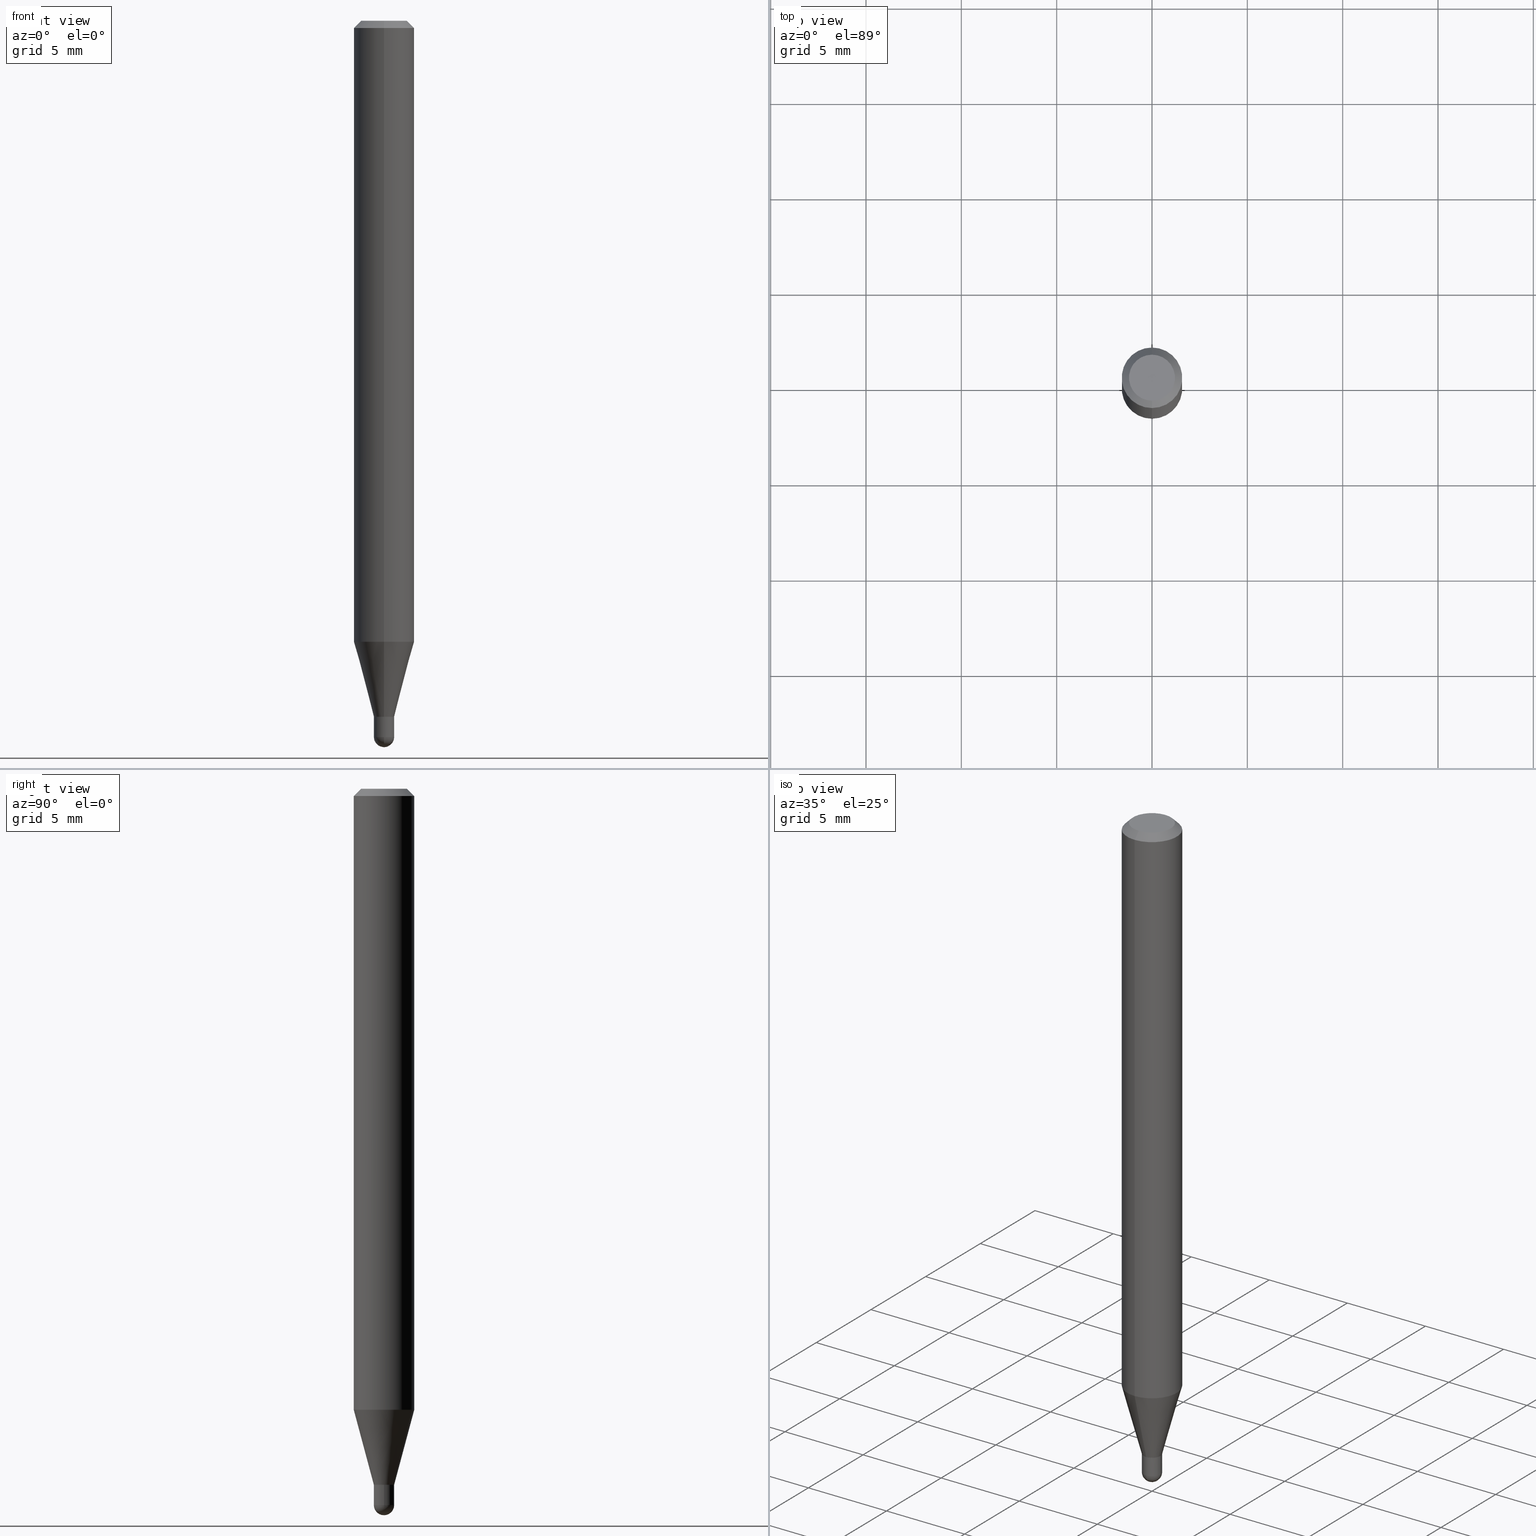
[diagram: canonical four-view strip — front | top / right | iso, engineering-drawing reading convention]
A machine part, canonical four-view strip (front | top / right | iso — engineering-drawing reading convention). The complete STEP part file that produces these views, byte-faithful:
ISO-10303-21;
HEADER;
FILE_DESCRIPTION (( 'STEP AP203' ),
    '1' );
FILE_NAME ('01399.STEP',
    '2024-03-07T20:22:15',
    ( '' ),
    ( '' ),
    'SwSTEP 2.0',
    'SolidWorks 2023',
    '' );
FILE_SCHEMA (( 'CONFIG_CONTROL_DESIGN' ));
ENDSEC;

DATA;
#1 = CARTESIAN_POINT ( 'NONE',  ( 0.000000000000000000, 0.000000000000000000, 0.000000000000000000 ) ) ;
#2 = DIRECTION ( 'NONE',  ( -2.445457810886639076E-29, 3.491497084736407816E-15, 1.000000000000000000 ) ) ;
#3 = EDGE_LOOP ( 'NONE', ( #261, #9, #63, #347 ) ) ;
#4 = EDGE_CURVE ( 'NONE', #162, #239, #339, .T. ) ;
#5 = ORIENTED_EDGE ( 'NONE', *, *, #6, .F. ) ;
#6 = EDGE_CURVE ( 'NONE', #276, #180, #224, .T. ) ;
#7 = CIRCLE ( 'NONE', #184, 0.02099999999999992498 ) ;
#8 = PRODUCT_DEFINITION_FORMATION_WITH_SPECIFIED_SOURCE ( 'ANY', '', #95, .NOT_KNOWN. ) ;
#9 = ORIENTED_EDGE ( 'NONE', *, *, #472, .T. ) ;
#10 = DIRECTION ( 'NONE',  ( -2.445457810886639076E-29, 3.491497084736407816E-15, 1.000000000000000000 ) ) ;
#11 = CARTESIAN_POINT ( 'NONE',  ( 3.514122874244100185E-29, -5.017281310766218932E-15, -1.437000000000000055 ) ) ;
#12 = CLOSED_SHELL ( 'NONE', ( #131, #349, #259, #50, #329, #392, #141, #38, #476, #412, #409, #267 ) ) ;
#13 = CONICAL_SURFACE ( 'NONE', #299, 0.02099999999999992498, 0.2617993877991575125 ) ;
#14 = DIRECTION ( 'NONE',  ( -2.445457810886639076E-29, 3.491497084736408211E-15, 1.000000000000000000 ) ) ;
#15 = EDGE_CURVE ( 'NONE', #20, #19, #107, .T. ) ;
#16 = DIRECTION ( 'NONE',  ( -6.982962677686266711E-15, -1.000000000000000000, 0.000000000000000000 ) ) ;
#17 = CIRCLE ( 'NONE', #453, 0.04749999999999999362 ) ;
#18 = DIRECTION ( 'NONE',  ( -6.982962677686266711E-15, -1.000000000000000000, 3.491497084736407816E-15 ) ) ;
#19 = VERTEX_POINT ( 'NONE', #352 ) ;
#20 = VERTEX_POINT ( 'NONE', #72 ) ;
#21 = PLANE ( 'NONE',  #396 ) ;
#22 = ORIENTED_EDGE ( 'NONE', *, *, #103, .F. ) ;
#23 = VECTOR ( 'NONE', #402, 39.37007874015748854 ) ;
#24 = CARTESIAN_POINT ( 'NONE',  ( 1.466422162314467535E-16, 0.02099999999999498795, -1.437000000000000055 ) ) ;
#25 = CARTESIAN_POINT ( 'NONE',  ( 3.514122874244100185E-29, -5.017281310766218932E-15, -1.437000000000000055 ) ) ;
#26 = DIRECTION ( 'NONE',  ( 6.982962677686265922E-15, 1.000000000000000000, -3.491497084736408211E-15 ) ) ;
#27 = CARTESIAN_POINT ( 'NONE',  ( 3.668186716329960943E-31, -5.237245627104615200E-17, -0.01500000000000000812 ) ) ;
#28 = ORIENTED_EDGE ( 'NONE', *, *, #48, .F. ) ;
#29 = APPROVAL_STATUS ( 'not_yet_approved' ) ;
#30 = CC_DESIGN_DATE_AND_TIME_ASSIGNMENT ( #315, #154, ( #153 ) ) ;
#31 = CARTESIAN_POINT ( 'NONE',  ( 0.02100000000000000477, -1.466422162314116246E-16, 1.023997122917146650E-30 ) ) ;
#32 = VECTOR ( 'NONE', #136, 39.37007874015748854 ) ;
#33 = CC_DESIGN_SECURITY_CLASSIFICATION ( #153, ( #8 ) ) ;
#34 = DIRECTION ( 'NONE',  ( -2.445468806185136877E-29, 3.491481338843145188E-15, 1.000000000000000000 ) ) ;
#35 = ORIENTED_EDGE ( 'NONE', *, *, #181, .F. ) ;
#36 = PERSON_AND_ORGANIZATION ( #355, #308 ) ;
#37 = CARTESIAN_POINT ( 'NONE',  ( 3.616848364347817323E-29, -5.163900900149012660E-15, -1.479000000000000092 ) ) ;
#38 = ADVANCED_FACE ( 'NONE', ( #76 ), #78, .T. ) ;
#39 = ORIENTED_EDGE ( 'NONE', *, *, #181, .T. ) ;
#40 = CALENDAR_DATE ( 2024, 7, 3 ) ;
#41 = DIRECTION ( 'NONE',  ( -4.937700262164674260E-15, -0.7071067811865632269, 0.7071067811865319186 ) ) ;
#42 = CARTESIAN_POINT ( 'NONE',  ( 3.514122874244100185E-29, -5.017281310766218932E-15, -1.437000000000000055 ) ) ;
#43 = AXIS2_PLACEMENT_3D ( 'NONE', #151, #269, #307 ) ;
#44 = LOCAL_TIME ( 15, 22, 15.00000000000000000, #223 ) ;
#45 = CIRCLE ( 'NONE', #237, 0.02100000000000000477 ) ;
#46 = DIRECTION ( 'NONE',  ( -6.982962677686266711E-15, -1.000000000000000000, 0.000000000000000000 ) ) ;
#47 = CALENDAR_DATE ( 2024, 7, 3 ) ;
#48 = EDGE_CURVE ( 'NONE', #150, #162, #91, .T. ) ;
#49 = FACE_OUTER_BOUND ( 'NONE', #92, .T. ) ;
#50 = ADVANCED_FACE ( 'NONE', ( #189 ), #114, .T. ) ;
#51 = CARTESIAN_POINT ( 'NONE',  ( 1.492139745096204813E-16, 0.02099999999999992498, -7.332143877946431328E-17 ) ) ;
#52 = CC_DESIGN_PERSON_AND_ORGANIZATION_ASSIGNMENT ( #36, #481, ( #153 ) ) ;
#53 = FACE_OUTER_BOUND ( 'NONE', #232, .T. ) ;
#54 = DIRECTION ( 'NONE',  ( -2.445457810886639076E-29, 3.491497084736407816E-15, 1.000000000000000000 ) ) ;
#55 = CIRCLE ( 'NONE', #138, 0.06250000000000000000 ) ;
#56 = VECTOR ( 'NONE', #373, 39.37007874015748143 ) ;
#57 = EDGE_CURVE ( 'NONE', #257, #246, #331, .T. ) ;
#58 = FACE_OUTER_BOUND ( 'NONE', #423, .T. ) ;
#59 = APPROVAL ( #164, 'UNSPECIFIED' ) ;
#60 = DIRECTION ( 'NONE',  ( -2.445457810886639076E-29, 3.491497084736407816E-15, 1.000000000000000000 ) ) ;
#61 = DIRECTION ( 'NONE',  ( 5.024295867788190974E-15, 0.7071067811865681119, 0.7071067811865270336 ) ) ;
#62 =( GEOMETRIC_REPRESENTATION_CONTEXT ( 3 ) GLOBAL_UNCERTAINTY_ASSIGNED_CONTEXT ( ( #434 ) ) GLOBAL_UNIT_ASSIGNED_CONTEXT ( ( #379, #71, #179 ) ) REPRESENTATION_CONTEXT ( 'NONE', 'WORKASPACE' ) );
#63 = ORIENTED_EDGE ( 'NONE', *, *, #233, .F. ) ;
#64 = DIRECTION ( 'NONE',  ( -1.000000000000000000, 6.982962677686265922E-15, -4.876176775795935793E-29 ) ) ;
#65 = ORIENTED_EDGE ( 'NONE', *, *, #4, .T. ) ;
#66 = CARTESIAN_POINT ( 'NONE',  ( 4.440892098500625669E-16, 0.06250000000000000000, -2.182185677960254885E-16 ) ) ;
#67 = ORIENTED_EDGE ( 'NONE', *, *, #97, .T. ) ;
#68 = PERSON_AND_ORGANIZATION ( #355, #308 ) ;
#69 = ORIENTED_EDGE ( 'NONE', *, *, #88, .T. ) ;
#70 = DIRECTION ( 'NONE',  ( 1.000000000000000000, -6.982962677686284065E-15, 0.000000000000000000 ) ) ;
#71 =( NAMED_UNIT ( * ) PLANE_ANGLE_UNIT ( ) SI_UNIT ( $, .RADIAN. ) );
#72 = CARTESIAN_POINT ( 'NONE',  ( 3.840629472727447874E-16, 0.04749999999999999362, -1.747056831868805136E-16 ) ) ;
#73 = EDGE_LOOP ( 'NONE', ( #157, #461, #389, #507, #140 ) ) ;
#74 = CC_DESIGN_PERSON_AND_ORGANIZATION_ASSIGNMENT ( #268, #145, ( #95 ) ) ;
#75 = DIRECTION ( 'NONE',  ( -2.445468806185136597E-29, 3.491481338843145583E-15, 1.000000000000000000 ) ) ;
#76 = FACE_OUTER_BOUND ( 'NONE', #345, .T. ) ;
#77 = VERTEX_POINT ( 'NONE', #375 ) ;
#78 = CONICAL_SURFACE ( 'NONE', #225, 0.06250000000000000000, 0.7853981633974483900 ) ;
#79 = AXIS2_PLACEMENT_3D ( 'NONE', #262, #301, #26 ) ;
#80 = EDGE_CURVE ( 'NONE', #370, #512, #7, .T. ) ;
#81 = DIRECTION ( 'NONE',  ( -6.982962677686266711E-15, -1.000000000000000000, 3.491497084736408211E-15 ) ) ;
#82 = ORIENTED_EDGE ( 'NONE', *, *, #289, .F. ) ;
#83 = SHAPE_DEFINITION_REPRESENTATION ( #137, #489 ) ;
#84 = PERSON_AND_ORGANIZATION ( #355, #308 ) ;
#85 = CARTESIAN_POINT ( 'NONE',  ( 3.512900145338657189E-29, -5.015535562223849632E-15, -1.436500000000000110 ) ) ;
#86 = PERSON_AND_ORGANIZATION_ROLE ( 'creator' ) ;
#87 = LOCAL_TIME ( 15, 22, 15.00000000000000000, #282 ) ;
#88 = EDGE_CURVE ( 'NONE', #297, #150, #251, .T. ) ;
#89 = DIRECTION ( 'NONE',  ( -2.445457810886639076E-29, 3.491497084736408211E-15, 1.000000000000000000 ) ) ;
#90 = ADVANCED_FACE ( 'NONE', ( #467 ), #265, .T. ) ;
#91 = CIRCLE ( 'NONE', #163, 0.02100000000000000824 ) ;
#92 = EDGE_LOOP ( 'NONE', ( #219, #457, #464, #471 ) ) ;
#93 = DIRECTION ( 'NONE',  ( -6.982962677686266711E-15, -1.000000000000000000, 0.000000000000000000 ) ) ;
#94 = EDGE_LOOP ( 'NONE', ( #273, #270, #111, #508 ) ) ;
#95 = PRODUCT ( '01399', '01399', '', ( #499 ) ) ;
#96 = DIRECTION ( 'NONE',  ( -6.982962677686265922E-15, -1.000000000000000000, 3.491497084736408211E-15 ) ) ;
#97 = EDGE_CURVE ( 'NONE', #276, #150, #490, .T. ) ;
#98 = DIRECTION ( 'NONE',  ( 2.438088387897960049E-29, -3.491481338843145188E-15, -1.000000000000000000 ) ) ;
#99 = ORIENTED_EDGE ( 'NONE', *, *, #414, .F. ) ;
#100 = AXIS2_PLACEMENT_3D ( 'NONE', #280, #2, #388 ) ;
#101 = AXIS2_PLACEMENT_3D ( 'NONE', #42, #318, #313 ) ;
#102 = ORIENTED_EDGE ( 'NONE', *, *, #156, .T. ) ;
#103 = EDGE_CURVE ( 'NONE', #158, #77, #55, .T. ) ;
#104 = CARTESIAN_POINT ( 'NONE',  ( 3.512900145338657189E-29, -5.015535562223849632E-15, -1.436500000000000110 ) ) ;
#105 = DIRECTION ( 'NONE',  ( -2.445468806185136597E-29, 3.491481338843145583E-15, 1.000000000000000000 ) ) ;
#106 = CARTESIAN_POINT ( 'NONE',  ( -1.466422162313759286E-16, -0.02100000000000494180, -1.437000000000000055 ) ) ;
#107 = LINE ( 'NONE', #377, #235 ) ;
#108 = CARTESIAN_POINT ( 'NONE',  ( 0.000000000000000000, 0.000000000000000000, 0.000000000000000000 ) ) ;
#109 = VERTEX_POINT ( 'NONE', #195 ) ;
#110 = DIRECTION ( 'NONE',  ( -2.445457810886639076E-29, 3.491497084736407816E-15, 1.000000000000000000 ) ) ;
#111 = ORIENTED_EDGE ( 'NONE', *, *, #368, .T. ) ;
#112 = AXIS2_PLACEMENT_3D ( 'NONE', #207, #358, #323 ) ;
#113 = LOCAL_TIME ( 15, 22, 15.00000000000000000, #473 ) ;
#114 = CYLINDRICAL_SURFACE ( 'NONE', #43, 0.06250000000000000000 ) ;
#115 = ORIENTED_EDGE ( 'NONE', *, *, #431, .T. ) ;
#116 = DIRECTION ( 'NONE',  ( 1.000000000000000000, -6.982962677686265922E-15, 4.876176775795935232E-29 ) ) ;
#117 = ORIENTED_EDGE ( 'NONE', *, *, #15, .T. ) ;
#118 = PERSON_AND_ORGANIZATION ( #355, #308 ) ;
#119 = DIRECTION ( 'NONE',  ( -2.445468806185136597E-29, 3.491481338843145583E-15, 1.000000000000000000 ) ) ;
#120 = ORIENTED_EDGE ( 'NONE', *, *, #289, .T. ) ;
#121 = VECTOR ( 'NONE', #430, 39.37007874015748143 ) ;
#122 = PERSON_AND_ORGANIZATION_ROLE ( 'creator' ) ;
#123 = AXIS2_PLACEMENT_3D ( 'NONE', #104, #110, #182 ) ;
#124 = DIRECTION ( 'NONE',  ( -2.445468806185136597E-29, 3.491481338843145583E-15, 1.000000000000000000 ) ) ;
#125 = CARTESIAN_POINT ( 'NONE',  ( -4.364351673553912750E-16, -0.06250000000000005551, -0.01499999999999979128 ) ) ;
#126 = COORDINATED_UNIVERSAL_TIME_OFFSET ( 5, 0, .BEHIND. ) ;
#127 = CARTESIAN_POINT ( 'NONE',  ( 0.02100000000000000477, -5.163900900149012660E-15, -1.437000000000000055 ) ) ;
#128 = LINE ( 'NONE', #371, #32 ) ;
#129 = CARTESIAN_POINT ( 'NONE',  ( -1.431507348925333159E-16, -0.02050000000000501768, -1.437000000000000055 ) ) ;
#130 = DIRECTION ( 'NONE',  ( -6.982962677686266711E-15, -1.000000000000000000, 3.491497084736408211E-15 ) ) ;
#131 = ADVANCED_FACE ( 'NONE', ( #344 ), #511, .F. ) ;
#132 = AXIS2_PLACEMENT_3D ( 'NONE', #205, #167, #175 ) ;
#133 = AXIS2_PLACEMENT_3D ( 'NONE', #204, #10, #399 ) ;
#134 = CARTESIAN_POINT ( 'NONE',  ( 3.615052515140540551E-29, -5.166472658427222799E-15, -1.479000000000000092 ) ) ;
#135 = CARTESIAN_POINT ( 'NONE',  ( -4.287811248607203282E-16, -0.06250000000000005551, -0.01499999999999979128 ) ) ;
#136 = DIRECTION ( 'NONE',  ( 1.839019923739649619E-15, 0.2588190451025318972, 0.9659258262890650926 ) ) ;
#137 = PRODUCT_DEFINITION_SHAPE ( 'NONE', 'NONE',  #306 ) ;
#138 = AXIS2_PLACEMENT_3D ( 'NONE', #424, #275, #384 ) ;
#139 = CIRCLE ( 'NONE', #252, 0.02100000000000000824 ) ;
#140 = ORIENTED_EDGE ( 'NONE', *, *, #454, .F. ) ;
#141 = ADVANCED_FACE ( 'NONE', ( #312 ), #155, .T. ) ;
#142 = DIRECTION ( 'NONE',  ( -6.982962677686266711E-15, -1.000000000000000000, 0.000000000000000000 ) ) ;
#143 = EDGE_CURVE ( 'NONE', #109, #314, #210, .T. ) ;
#144 = CLOSED_SHELL ( 'NONE', ( #359, #458, #492, #397, #90 ) ) ;
#145 = PERSON_AND_ORGANIZATION_ROLE ( 'design_owner' ) ;
#146 = DIRECTION ( 'NONE',  ( -2.445457810886639076E-29, 3.491497084736407816E-15, 1.000000000000000000 ) ) ;
#147 = ORIENTED_EDGE ( 'NONE', *, *, #444, .F. ) ;
#148 = CC_DESIGN_DATE_AND_TIME_ASSIGNMENT ( #426, #166, ( #306 ) ) ;
#149 = DIRECTION ( 'NONE',  ( -6.982962677686266711E-15, -1.000000000000000000, 0.000000000000000000 ) ) ;
#150 = VERTEX_POINT ( 'NONE', #249 ) ;
#151 = CARTESIAN_POINT ( 'NONE',  ( 0.000000000000000000, 0.000000000000000000, 0.000000000000000000 ) ) ;
#152 = ORIENTED_EDGE ( 'NONE', *, *, #324, .T. ) ;
#153 = SECURITY_CLASSIFICATION ( '', '', #319 ) ;
#154 = DATE_TIME_ROLE ( 'classification_date' ) ;
#155 = CYLINDRICAL_SURFACE ( 'NONE', #364, 0.06250000000000000000 ) ;
#156 = EDGE_CURVE ( 'NONE', #19, #314, #417, .T. ) ;
#157 = ORIENTED_EDGE ( 'NONE', *, *, #4, .F. ) ;
#158 = VERTEX_POINT ( 'NONE', #439 ) ;
#159 = FACE_OUTER_BOUND ( 'NONE', #448, .T. ) ;
#160 = ORIENTED_EDGE ( 'NONE', *, *, #361, .T. ) ;
#161 = MANIFOLD_SOLID_BREP ( 'Body-Move/Copy2[2]', #12 ) ;
#162 = VERTEX_POINT ( 'NONE', #391 ) ;
#163 = AXIS2_PLACEMENT_3D ( 'NONE', #37, #234, #260 ) ;
#164 = APPROVAL_STATUS ( 'not_yet_approved' ) ;
#165 = DIRECTION ( 'NONE',  ( -6.982962677686266711E-15, -1.000000000000000000, 0.000000000000000000 ) ) ;
#166 = DATE_TIME_ROLE ( 'creation_date' ) ;
#167 = DIRECTION ( 'NONE',  ( 2.445457810886639076E-29, -3.491497084736407816E-15, -1.000000000000000000 ) ) ;
#168 = CARTESIAN_POINT ( 'NONE',  ( 3.668186716329960943E-31, -5.237245627104615200E-17, -0.01500000000000000812 ) ) ;
#169 = AXIS2_PLACEMENT_3D ( 'NONE', #231, #119, #380 ) ;
#170 = LOCAL_TIME ( 15, 22, 15.00000000000000000, #126 ) ;
#171 = CARTESIAN_POINT ( 'NONE',  ( 3.514122874244100185E-29, -5.017281310766218932E-15, -1.437000000000000055 ) ) ;
#172 = APPLICATION_CONTEXT ( 'configuration controlled 3d designs of mechanical parts and assemblies' ) ;
#173 = CARTESIAN_POINT ( 'NONE',  ( 3.615052515140540551E-29, -5.166472658427222799E-15, -1.479000000000000092 ) ) ;
#174 = DIRECTION ( 'NONE',  ( -6.982962677686266711E-15, -1.000000000000000000, 0.000000000000000000 ) ) ;
#175 = DIRECTION ( 'NONE',  ( 6.982962677686265922E-15, 1.000000000000000000, -3.483106191921935554E-15 ) ) ;
#176 = DIRECTION ( 'NONE',  ( -2.445457810886639076E-29, 3.491497084736408211E-15, 1.000000000000000000 ) ) ;
#177 = AXIS2_PLACEMENT_3D ( 'NONE', #192, #474, #305 ) ;
#178 = EDGE_CURVE ( 'NONE', #246, #367, #400, .T. ) ;
#179 =( NAMED_UNIT ( * ) SI_UNIT ( $, .STERADIAN. ) SOLID_ANGLE_UNIT ( ) );
#180 = VERTEX_POINT ( 'NONE', #127 ) ;
#181 = EDGE_CURVE ( 'NONE', #236, #367, #285, .T. ) ;
#182 = DIRECTION ( 'NONE',  ( -6.982962677686266711E-15, -1.000000000000000000, 0.000000000000000000 ) ) ;
#183 = VERTEX_POINT ( 'NONE', #393 ) ;
#184 = AXIS2_PLACEMENT_3D ( 'NONE', #25, #504, #149 ) ;
#185 = AXIS2_PLACEMENT_3D ( 'NONE', #363, #60, #357 ) ;
#186 =( LENGTH_UNIT ( ) NAMED_UNIT ( * ) SI_UNIT ( $, .METRE. ) );
#187 = DIRECTION ( 'NONE',  ( -6.982962677686266711E-15, -1.000000000000000000, 0.000000000000000000 ) ) ;
#188 = LENGTH_MEASURE_WITH_UNIT ( LENGTH_MEASURE( 0.02539999999999999897 ), #186 );
#189 = FACE_OUTER_BOUND ( 'NONE', #3, .T. ) ;
#190 = EDGE_LOOP ( 'NONE', ( #469, #69, #479, #487 ) ) ;
#191 = CALENDAR_DATE ( 2024, 7, 3 ) ;
#192 = CARTESIAN_POINT ( 'NONE',  ( 3.615052515140540551E-29, -5.166472658427222799E-15, -1.479000000000000092 ) ) ;
#193 = AXIS2_PLACEMENT_3D ( 'NONE', #108, #468, #130 ) ;
#194 = ORIENTED_EDGE ( 'NONE', *, *, #433, .T. ) ;
#195 = CARTESIAN_POINT ( 'NONE',  ( -3.773273898774340269E-16, -0.04749999999999999362, 1.569865398630781964E-16 ) ) ;
#196 = ORIENTED_EDGE ( 'NONE', *, *, #48, .T. ) ;
#197 = CARTESIAN_POINT ( 'NONE',  ( 0.000000000000000000, 0.000000000000000000, 0.000000000000000000 ) ) ;
#198 = ORIENTED_EDGE ( 'NONE', *, *, #472, .F. ) ;
#199 = EDGE_CURVE ( 'NONE', #109, #20, #263, .T. ) ;
#200 = DIRECTION ( 'NONE',  ( -2.445457810886639076E-29, 3.491497084736407816E-15, 1.000000000000000000 ) ) ;
#201 = AXIS2_PLACEMENT_3D ( 'NONE', #168, #241, #482 ) ;
#202 = CIRCLE ( 'NONE', #491, 0.02050000000000000086 ) ;
#203 = CARTESIAN_POINT ( 'NONE',  ( 3.668186716329960943E-31, -5.237245627104615200E-17, -0.01500000000000000812 ) ) ;
#204 = CARTESIAN_POINT ( 'NONE',  ( 3.514122874244100185E-29, -5.017281310766218932E-15, -1.437000000000000055 ) ) ;
#205 = CARTESIAN_POINT ( 'NONE',  ( 3.668186716329960943E-31, -5.237245627104615200E-17, -0.01500000000000000812 ) ) ;
#206 = DIRECTION ( 'NONE',  ( -2.445457810886639076E-29, 3.491497084736407816E-15, 1.000000000000000000 ) ) ;
#207 = CARTESIAN_POINT ( 'NONE',  ( 2.166570872170608924E-46, -3.093316862954116023E-32, -8.859571661901150933E-18 ) ) ;
#208 = CONICAL_SURFACE ( 'NONE', #286, 0.02050000000000000086, 0.7853981633974739252 ) ;
#209 = CARTESIAN_POINT ( 'NONE',  ( -1.466422162314110822E-16, -0.02099999999999992498, 7.332143877946431328E-17 ) ) ;
#210 = LINE ( 'NONE', #135, #121 ) ;
#211 = DESIGN_CONTEXT ( 'detailed design', #446, 'design' ) ;
#212 = CARTESIAN_POINT ( 'NONE',  ( -1.466422162313764217E-16, -0.02100000000000501119, -1.436500000000000110 ) ) ;
#213 = LINE ( 'NONE', #295, #277 ) ;
#214 = CC_DESIGN_PERSON_AND_ORGANIZATION_ASSIGNMENT ( #475, #398, ( #8 ) ) ;
#215 = CARTESIAN_POINT ( 'NONE',  ( 2.166570872170608924E-46, -3.093316862954116023E-32, -8.859571661901150933E-18 ) ) ;
#216 = AXIS2_PLACEMENT_3D ( 'NONE', #272, #75, #116 ) ;
#217 = CIRCLE ( 'NONE', #244, 0.02100000000000020947 ) ;
#218 = ORIENTED_EDGE ( 'NONE', *, *, #156, .F. ) ;
#219 = ORIENTED_EDGE ( 'NONE', *, *, #199, .F. ) ;
#220 = FACE_OUTER_BOUND ( 'NONE', #227, .T. ) ;
#221 = ORIENTED_EDGE ( 'NONE', *, *, #376, .T. ) ;
#222 = DIRECTION ( 'NONE',  ( 0.000000000000000000, 0.000000000000000000, 1.000000000000000000 ) ) ;
#223 = COORDINATED_UNIVERSAL_TIME_OFFSET ( 5, 0, .BEHIND. ) ;
#224 = LINE ( 'NONE', #31, #383 ) ;
#225 = AXIS2_PLACEMENT_3D ( 'NONE', #27, #422, #427 ) ;
#226 = CC_DESIGN_APPROVAL ( #497, ( #306 ) ) ;
#227 = EDGE_LOOP ( 'NONE', ( #292, #302 ) ) ;
#228 = SPHERICAL_SURFACE ( 'NONE', #418, 0.02100000000000020947 ) ;
#229 = EDGE_LOOP ( 'NONE', ( #82, #407, #221, #22 ) ) ;
#230 = ORIENTED_EDGE ( 'NONE', *, *, #88, .F. ) ;
#231 = CARTESIAN_POINT ( 'NONE',  ( 3.616848364347817323E-29, -5.163900900149012660E-15, -1.479000000000000092 ) ) ;
#232 = EDGE_LOOP ( 'NONE', ( #230, #115, #419, #28 ) ) ;
#233 = EDGE_CURVE ( 'NONE', #314, #19, #394, .T. ) ;
#234 = DIRECTION ( 'NONE',  ( -2.445468806185136597E-29, 3.491481338843145583E-15, 1.000000000000000000 ) ) ;
#235 = VECTOR ( 'NONE', #415, 39.37007874015748143 ) ;
#236 = VERTEX_POINT ( 'NONE', #288 ) ;
#237 = AXIS2_PLACEMENT_3D ( 'NONE', #283, #248, #432 ) ;
#238 = DIRECTION ( 'NONE',  ( -2.445468806185136877E-29, 3.491481338843145188E-15, 1.000000000000000000 ) ) ;
#239 = VERTEX_POINT ( 'NONE', #320 ) ;
#240 = CALENDAR_DATE ( 2024, 7, 3 ) ;
#241 = DIRECTION ( 'NONE',  ( -2.445457810886639076E-29, 3.491497084736407816E-15, 1.000000000000000000 ) ) ;
#242 = CC_DESIGN_PERSON_AND_ORGANIZATION_ASSIGNMENT ( #274, #122, ( #306 ) ) ;
#243 = DATE_AND_TIME ( #47, #170 ) ;
#244 = AXIS2_PLACEMENT_3D ( 'NONE', #134, #255, #406 ) ;
#245 = CARTESIAN_POINT ( 'NONE',  ( 1.474376176702556294E-16, 0.02049999999999498751, -1.437000000000000055 ) ) ;
#246 = VERTEX_POINT ( 'NONE', #129 ) ;
#247 = LINE ( 'NONE', #290, #23 ) ;
#248 = DIRECTION ( 'NONE',  ( -2.445468806185136597E-29, 3.491481338843145583E-15, 1.000000000000000000 ) ) ;
#249 = CARTESIAN_POINT ( 'NONE',  ( 1.492139745096579522E-16, 0.02099999999999493938, -1.479000000000000092 ) ) ;
#250 = CYLINDRICAL_SURFACE ( 'NONE', #193, 0.02099999999999992498 ) ;
#251 = CIRCLE ( 'NONE', #177, 0.02100000000000020947 ) ;
#252 = AXIS2_PLACEMENT_3D ( 'NONE', #334, #287, #459 ) ;
#253 = DIRECTION ( 'NONE',  ( 1.000000000000000000, -6.982962677686266711E-15, 4.883557194083112340E-29 ) ) ;
#254 = ORIENTED_EDGE ( 'NONE', *, *, #506, .F. ) ;
#255 = DIRECTION ( 'NONE',  ( -1.000000000000000000, 6.982962677686265922E-15, -4.883557194083112340E-29 ) ) ;
#256 = PLANE ( 'NONE',  #333 ) ;
#257 = VERTEX_POINT ( 'NONE', #245 ) ;
#258 = CC_DESIGN_APPROVAL ( #486, ( #153 ) ) ;
#259 = ADVANCED_FACE ( 'NONE', ( #49 ), #343, .T. ) ;
#260 = DIRECTION ( 'NONE',  ( 1.000000000000000000, -6.982962677686284065E-15, 0.000000000000000000 ) ) ;
#261 = ORIENTED_EDGE ( 'NONE', *, *, #321, .T. ) ;
#262 = CARTESIAN_POINT ( 'NONE',  ( 3.316907271900976096E-16, 0.04749999999999999362, -1.702758973559299158E-16 ) ) ;
#263 = CIRCLE ( 'NONE', #112, 0.04749999999999999362 ) ;
#264 = CARTESIAN_POINT ( 'NONE',  ( -4.364351673553916201E-16, -0.06250000000000000000, 2.182185677960254885E-16 ) ) ;
#265 = CYLINDRICAL_SURFACE ( 'NONE', #216, 0.02100000000000000477 ) ;
#266 = AXIS2_PLACEMENT_3D ( 'NONE', #1, #387, #81 ) ;
#267 = ADVANCED_FACE ( 'NONE', ( #378 ), #250, .F. ) ;
#268 = PERSON_AND_ORGANIZATION ( #355, #308 ) ;
#269 = DIRECTION ( 'NONE',  ( -2.445457810886639076E-29, 3.491497084736407816E-15, 1.000000000000000000 ) ) ;
#270 = ORIENTED_EDGE ( 'NONE', *, *, #324, .F. ) ;
#271 = COORDINATED_UNIVERSAL_TIME_OFFSET ( 5, 0, .BEHIND. ) ;
#272 = CARTESIAN_POINT ( 'NONE',  ( 0.000000000000000000, 0.000000000000000000, 0.000000000000000000 ) ) ;
#273 = ORIENTED_EDGE ( 'NONE', *, *, #403, .F. ) ;
#274 = PERSON_AND_ORGANIZATION ( #355, #308 ) ;
#275 = DIRECTION ( 'NONE',  ( -2.445457810886639076E-29, 3.491497084736407816E-15, 1.000000000000000000 ) ) ;
#276 = VERTEX_POINT ( 'NONE', #493 ) ;
#277 = VECTOR ( 'NONE', #61, 39.37007874015748143 ) ;
#278 = DATE_AND_TIME ( #40, #113 ) ;
#279 = EDGE_CURVE ( 'NONE', #162, #183, #408, .T. ) ;
#280 = CARTESIAN_POINT ( 'NONE',  ( 3.135370103127315125E-29, -4.476517863405566177E-15, -1.282119891485896224 ) ) ;
#281 = ORIENTED_EDGE ( 'NONE', *, *, #454, .T. ) ;
#282 = COORDINATED_UNIVERSAL_TIME_OFFSET ( 5, 0, .BEHIND. ) ;
#283 = CARTESIAN_POINT ( 'NONE',  ( 3.514138674488041056E-29, -5.017258683917600838E-15, -1.437000000000000055 ) ) ;
#284 = DIRECTION ( 'NONE',  ( -6.982962677686265922E-15, -1.000000000000000000, 3.483106191921935554E-15 ) ) ;
#285 = CIRCLE ( 'NONE', #488, 0.02099999999999992498 ) ;
#286 = AXIS2_PLACEMENT_3D ( 'NONE', #171, #206, #174 ) ;
#287 = DIRECTION ( 'NONE',  ( -2.445468806185136597E-29, 3.491481338843145583E-15, 1.000000000000000000 ) ) ;
#288 = CARTESIAN_POINT ( 'NONE',  ( 1.492139745096551172E-16, 0.02099999999999484224, -1.436500000000000110 ) ) ;
#289 = EDGE_CURVE ( 'NONE', #370, #158, #128, .T. ) ;
#290 = CARTESIAN_POINT ( 'NONE',  ( -1.466422162313759286E-16, -0.02100000000000494180, -1.437000000000000055 ) ) ;
#291 = CARTESIAN_POINT ( 'NONE',  ( -1.431507348925333159E-16, -0.02050000000000501768, -1.437000000000000055 ) ) ;
#292 = ORIENTED_EDGE ( 'NONE', *, *, #444, .T. ) ;
#293 = AXIS2_PLACEMENT_3D ( 'NONE', #173, #253, #16 ) ;
#294 = DIRECTION ( 'NONE',  ( -2.445457810886638235E-29, 3.491497084736408211E-15, 1.000000000000000000 ) ) ;
#295 = CARTESIAN_POINT ( 'NONE',  ( 1.456612608308556732E-16, 0.02049999999999498751, -1.437000000000000055 ) ) ;
#296 = LINE ( 'NONE', #66, #56 ) ;
#297 = VERTEX_POINT ( 'NONE', #351 ) ;
#298 = DIRECTION ( 'NONE',  ( -2.445468806185136597E-29, 3.491481338843145583E-15, 1.000000000000000000 ) ) ;
#299 = AXIS2_PLACEMENT_3D ( 'NONE', #401, #348, #46 ) ;
#300 = ORIENTED_EDGE ( 'NONE', *, *, #403, .T. ) ;
#301 = DIRECTION ( 'NONE',  ( 2.445457810886638235E-29, -3.491497084736408211E-15, -1.000000000000000000 ) ) ;
#302 = ORIENTED_EDGE ( 'NONE', *, *, #199, .T. ) ;
#303 = DIMENSIONAL_EXPONENTS ( 1.000000000000000000, 0.000000000000000000, 0.000000000000000000, 0.000000000000000000, 0.000000000000000000, 0.000000000000000000, 0.000000000000000000 ) ;
#304 = DATE_AND_TIME ( #191, #44 ) ;
#305 = DIRECTION ( 'NONE',  ( 7.105427357600999492E-15, 1.000000000000000000, 0.000000000000000000 ) ) ;
#306 = PRODUCT_DEFINITION ( 'UNKNOWN', '', #8, #211 ) ;
#307 = DIRECTION ( 'NONE',  ( -6.982962677686265922E-15, -1.000000000000000000, 3.491497084736407816E-15 ) ) ;
#308 = ORGANIZATION ( 'UNSPECIFIED', 'UNSPECIFIED', '' ) ;
#309 = ORIENTED_EDGE ( 'NONE', *, *, #143, .F. ) ;
#310 = ORIENTED_EDGE ( 'NONE', *, *, #57, .T. ) ;
#311 = EDGE_LOOP ( 'NONE', ( #198, #381, #160, #218 ) ) ;
#312 = FACE_OUTER_BOUND ( 'NONE', #311, .T. ) ;
#313 = DIRECTION ( 'NONE',  ( -6.982962677686266711E-15, -1.000000000000000000, 0.000000000000000000 ) ) ;
#314 = VERTEX_POINT ( 'NONE', #125 ) ;
#315 = DATE_AND_TIME ( #509, #436 ) ;
#316 = VECTOR ( 'NONE', #34, 39.37007874015748143 ) ;
#317 = PERSON_AND_ORGANIZATION ( #355, #308 ) ;
#318 = DIRECTION ( 'NONE',  ( -2.445457810886639076E-29, 3.491497084736407816E-15, 1.000000000000000000 ) ) ;
#319 = SECURITY_CLASSIFICATION_LEVEL ( 'unclassified' ) ;
#320 = CARTESIAN_POINT ( 'NONE',  ( -0.02100000000000000477, -4.941365817523685183E-15, -1.437000000000000055 ) ) ;
#321 = EDGE_CURVE ( 'NONE', #77, #158, #325, .T. ) ;
#322 = MANIFOLD_SOLID_BREP ( 'Body-Move/Copy2[1]', #144 ) ;
#323 = DIRECTION ( 'NONE',  ( -6.982962677686266711E-15, -1.000000000000000000, 3.491497084736407816E-15 ) ) ;
#324 = EDGE_CURVE ( 'NONE', #512, #370, #405, .T. ) ;
#325 = CIRCLE ( 'NONE', #100, 0.06250000000000000000 ) ;
#326 = FACE_OUTER_BOUND ( 'NONE', #229, .T. ) ;
#327 = ORIENTED_EDGE ( 'NONE', *, *, #433, .F. ) ;
#328 = EDGE_CURVE ( 'NONE', #180, #239, #45, .T. ) ;
#329 = ADVANCED_FACE ( 'NONE', ( #395 ), #13, .T. ) ;
#330 = FACE_OUTER_BOUND ( 'NONE', #460, .T. ) ;
#331 = CIRCLE ( 'NONE', #353, 0.02050000000000000086 ) ;
#332 = AXIS2_PLACEMENT_3D ( 'NONE', #501, #222, #338 ) ;
#333 = AXIS2_PLACEMENT_3D ( 'NONE', #11, #294, #96 ) ;
#334 = CARTESIAN_POINT ( 'NONE',  ( 3.616848364347817323E-29, -5.163900900149012660E-15, -1.479000000000000092 ) ) ;
#335 = ORIENTED_EDGE ( 'NONE', *, *, #368, .F. ) ;
#336 = FACE_OUTER_BOUND ( 'NONE', #190, .T. ) ;
#337 = CIRCLE ( 'NONE', #123, 0.02099999999999992498 ) ;
#338 = DIRECTION ( 'NONE',  ( 1.000000000000000000, 0.000000000000000000, 0.000000000000000000 ) ) ;
#339 = LINE ( 'NONE', #342, #316 ) ;
#340 = CC_DESIGN_PERSON_AND_ORGANIZATION_ASSIGNMENT ( #84, #86, ( #8 ) ) ;
#341 = DIRECTION ( 'NONE',  ( 1.000000000000000000, -6.982962677686284854E-15, 0.000000000000000000 ) ) ;
#342 = CARTESIAN_POINT ( 'NONE',  ( -0.02100000000000000477, 1.492139745096210730E-16, -1.032976368953530510E-30 ) ) ;
#343 = CONICAL_SURFACE ( 'NONE', #132, 0.06250000000000000000, 0.7853981633974483900 ) ;
#344 = FACE_OUTER_BOUND ( 'NONE', #386, .T. ) ;
#345 = EDGE_LOOP ( 'NONE', ( #309, #147, #117, #102 ) ) ;
#346 = APPROVAL_DATE_TIME ( #243, #486 ) ;
#347 = ORIENTED_EDGE ( 'NONE', *, *, #361, .F. ) ;
#348 = DIRECTION ( 'NONE',  ( -2.445457810886639076E-29, 3.491497084736407816E-15, 1.000000000000000000 ) ) ;
#349 = ADVANCED_FACE ( 'NONE', ( #159 ), #428, .T. ) ;
#350 = APPROVAL_DATE_TIME ( #278, #59 ) ;
#351 = CARTESIAN_POINT ( 'NONE',  ( 3.665509435466790578E-29, -5.241079645682034568E-15, -1.500000000000000222 ) ) ;
#352 = CARTESIAN_POINT ( 'NONE',  ( 4.440892098500940720E-16, 0.06249999999999993755, -0.01500000000000022669 ) ) ;
#353 = AXIS2_PLACEMENT_3D ( 'NONE', #470, #146, #187 ) ;
#354 = APPROVAL_PERSON_ORGANIZATION ( #317, #59, #390 ) ;
#355 = PERSON ( 'UNSPECIFIED', 'UNSPECIFIED', 'UNSPECIFIED', ('UNSPECIFIED'), ('UNSPECIFIED'), ('UNSPECIFIED') ) ;
#356 = DIRECTION ( 'NONE',  ( -2.445457810886639076E-29, 3.491497084736407816E-15, 1.000000000000000000 ) ) ;
#357 = DIRECTION ( 'NONE',  ( -6.982962677686266711E-15, -1.000000000000000000, 0.000000000000000000 ) ) ;
#358 = DIRECTION ( 'NONE',  ( -2.445457810886639076E-29, 3.491497084736407816E-15, 1.000000000000000000 ) ) ;
#359 = ADVANCED_FACE ( 'NONE', ( #440 ), #404, .T. ) ;
#360 = CONICAL_SURFACE ( 'NONE', #185, 0.02099999999999992498, 0.2617993877991575125 ) ;
#361 = EDGE_CURVE ( 'NONE', #77, #314, #503, .T. ) ;
#362 = SPHERICAL_SURFACE ( 'NONE', #293, 0.02100000000000020947 ) ;
#363 = CARTESIAN_POINT ( 'NONE',  ( 3.514122874244100185E-29, -5.017281310766218932E-15, -1.437000000000000055 ) ) ;
#364 = AXIS2_PLACEMENT_3D ( 'NONE', #197, #54, #477 ) ;
#365 = VECTOR ( 'NONE', #89, 39.37007874015748143 ) ;
#366 = DIRECTION ( 'NONE',  ( -2.445457810886639076E-29, 3.491497084736407816E-15, 1.000000000000000000 ) ) ;
#367 = VERTEX_POINT ( 'NONE', #212 ) ;
#368 = EDGE_CURVE ( 'NONE', #512, #367, #437, .T. ) ;
#369 = EDGE_LOOP ( 'NONE', ( #452, #281 ) ) ;
#370 = VERTEX_POINT ( 'NONE', #447 ) ;
#371 = CARTESIAN_POINT ( 'NONE',  ( 1.492139745096556349E-16, 0.02099999999999491163, -1.437000000000000055 ) ) ;
#372 = ORIENTED_EDGE ( 'NONE', *, *, #414, .T. ) ;
#373 = DIRECTION ( 'NONE',  ( -2.445457810886639076E-29, 3.491497084736408211E-15, 1.000000000000000000 ) ) ;
#374 = VECTOR ( 'NONE', #176, 39.37007874015748143 ) ;
#375 = CARTESIAN_POINT ( 'NONE',  ( -4.364351673553604601E-16, -0.06250000000000449640, -1.282119891485896002 ) ) ;
#376 = EDGE_CURVE ( 'NONE', #512, #77, #247, .T. ) ;
#377 = CARTESIAN_POINT ( 'NONE',  ( 4.364351673553919652E-16, 0.06249999999999995143, -0.01500000000000022669 ) ) ;
#378 = FACE_OUTER_BOUND ( 'NONE', #94, .T. ) ;
#379 =( CONVERSION_BASED_UNIT ( 'INCH', #188 ) LENGTH_UNIT ( ) NAMED_UNIT ( #303 ) );
#380 = DIRECTION ( 'NONE',  ( 1.000000000000000000, -6.982962677686284065E-15, 0.000000000000000000 ) ) ;
#381 = ORIENTED_EDGE ( 'NONE', *, *, #103, .T. ) ;
#382 = APPROVAL_ROLE ( '' ) ;
#383 = VECTOR ( 'NONE', #238, 39.37007874015748143 ) ;
#384 = DIRECTION ( 'NONE',  ( -6.982962677686265922E-15, -1.000000000000000000, 4.370956789862821150E-15 ) ) ;
#385 = CIRCLE ( 'NONE', #510, 0.02100000000000000477 ) ;
#386 = EDGE_LOOP ( 'NONE', ( #420, #300, #39, #335 ) ) ;
#387 = DIRECTION ( 'NONE',  ( -2.445457810886639076E-29, 3.491497084736407816E-15, 1.000000000000000000 ) ) ;
#388 = DIRECTION ( 'NONE',  ( -6.982962677686265922E-15, -1.000000000000000000, 4.370956789862821150E-15 ) ) ;
#389 = ORIENTED_EDGE ( 'NONE', *, *, #449, .T. ) ;
#390 = APPROVAL_ROLE ( '' ) ;
#391 = CARTESIAN_POINT ( 'NONE',  ( -0.02100000000000000824, -4.941365817523685183E-15, -1.479000000000000092 ) ) ;
#392 = ADVANCED_FACE ( 'NONE', ( #326 ), #360, .T. ) ;
#393 = CARTESIAN_POINT ( 'NONE',  ( -1.466422162313761752E-16, -0.02100000000000527139, -1.479000000000000092 ) ) ;
#394 = CIRCLE ( 'NONE', #465, 0.06250000000000000000 ) ;
#395 = FACE_OUTER_BOUND ( 'NONE', #411, .T. ) ;
#396 = AXIS2_PLACEMENT_3D ( 'NONE', #24, #98, #64 ) ;
#397 = ADVANCED_FACE ( 'NONE', ( #53 ), #362, .T. ) ;
#398 = PERSON_AND_ORGANIZATION_ROLE ( 'design_supplier' ) ;
#399 = DIRECTION ( 'NONE',  ( -6.982962677686266711E-15, -1.000000000000000000, 0.000000000000000000 ) ) ;
#400 = LINE ( 'NONE', #291, #435 ) ;
#401 = CARTESIAN_POINT ( 'NONE',  ( 3.514122874244100185E-29, -5.017281310766218932E-15, -1.437000000000000055 ) ) ;
#402 = DIRECTION ( 'NONE',  ( -1.807323732225379049E-15, -0.2588190451025252359, 0.9659258262890670910 ) ) ;
#403 = EDGE_CURVE ( 'NONE', #370, #236, #438, .T. ) ;
#404 = CYLINDRICAL_SURFACE ( 'NONE', #478, 0.02100000000000000477 ) ;
#405 = CIRCLE ( 'NONE', #101, 0.02099999999999992498 ) ;
#406 = DIRECTION ( 'NONE',  ( -6.982962677686265922E-15, -1.000000000000000000, 0.000000000000000000 ) ) ;
#407 = ORIENTED_EDGE ( 'NONE', *, *, #80, .T. ) ;
#408 = CIRCLE ( 'NONE', #483, 0.02100000000000000824 ) ;
#409 = ADVANCED_FACE ( 'NONE', ( #58 ), #208, .T. ) ;
#410 = DIRECTION ( 'NONE',  ( 1.000000000000000000, -6.982962677686266711E-15, 4.883557194083112340E-29 ) ) ;
#411 = EDGE_LOOP ( 'NONE', ( #152, #120, #429, #425 ) ) ;
#412 = ADVANCED_FACE ( 'NONE', ( #330 ), #256, .F. ) ;
#413 = APPLICATION_PROTOCOL_DEFINITION ( 'international standard', 'config_control_design', 1994, #446 ) ;
#414 = EDGE_CURVE ( 'NONE', #246, #257, #202, .T. ) ;
#415 = DIRECTION ( 'NONE',  ( 4.937700262164548042E-15, 0.7071067811865451302, -0.7071067811865499042 ) ) ;
#416 = APPLICATION_PROTOCOL_DEFINITION ( 'international standard', 'config_control_design', 1994, #172 ) ;
#417 = CIRCLE ( 'NONE', #201, 0.06250000000000000000 ) ;
#418 = AXIS2_PLACEMENT_3D ( 'NONE', #462, #410, #142 ) ;
#419 = ORIENTED_EDGE ( 'NONE', *, *, #279, .F. ) ;
#420 = ORIENTED_EDGE ( 'NONE', *, *, #80, .F. ) ;
#421 = APPROVAL_ROLE ( '' ) ;
#422 = DIRECTION ( 'NONE',  ( 2.445457810886639076E-29, -3.491497084736407816E-15, -1.000000000000000000 ) ) ;
#423 = EDGE_LOOP ( 'NONE', ( #327, #310, #496, #35 ) ) ;
#424 = CARTESIAN_POINT ( 'NONE',  ( 3.135370103127315125E-29, -4.476517863405566177E-15, -1.282119891485896224 ) ) ;
#425 = ORIENTED_EDGE ( 'NONE', *, *, #376, .F. ) ;
#426 = DATE_AND_TIME ( #240, #87 ) ;
#427 = DIRECTION ( 'NONE',  ( 6.982962677686265922E-15, 1.000000000000000000, -3.483106191921935554E-15 ) ) ;
#428 = CONICAL_SURFACE ( 'NONE', #133, 0.02050000000000000086, 0.7853981633974739252 ) ;
#429 = ORIENTED_EDGE ( 'NONE', *, *, #321, .F. ) ;
#430 = DIRECTION ( 'NONE',  ( -4.851104656540964275E-15, -0.7071067811865500152, -0.7071067811865450192 ) ) ;
#431 = EDGE_CURVE ( 'NONE', #297, #183, #217, .T. ) ;
#432 = DIRECTION ( 'NONE',  ( 1.000000000000000000, -6.982962677686284854E-15, 0.000000000000000000 ) ) ;
#433 = EDGE_CURVE ( 'NONE', #257, #236, #213, .T. ) ;
#434 = UNCERTAINTY_MEASURE_WITH_UNIT (LENGTH_MEASURE( 1.000000000000000082E-05 ), #379, 'distance_accuracy_value', 'NONE');
#435 = VECTOR ( 'NONE', #41, 39.37007874015748143 ) ;
#436 = LOCAL_TIME ( 15, 22, 15.00000000000000000, #271 ) ;
#437 = LINE ( 'NONE', #209, #498 ) ;
#438 = LINE ( 'NONE', #51, #374 ) ;
#439 = CARTESIAN_POINT ( 'NONE',  ( 4.440892098500937762E-16, 0.06249999999999551747, -1.282119891485896668 ) ) ;
#440 = FACE_OUTER_BOUND ( 'NONE', #505, .T. ) ;
#441 = ORIENTED_EDGE ( 'NONE', *, *, #328, .F. ) ;
#442 = APPROVAL_PERSON_ORGANIZATION ( #68, #497, #421 ) ;
#443 = DIRECTION ( 'NONE',  ( -2.445457810886639076E-29, 3.491497084736407816E-15, 1.000000000000000000 ) ) ;
#444 = EDGE_CURVE ( 'NONE', #20, #109, #17, .T. ) ;
#445 = ORIENTED_EDGE ( 'NONE', *, *, #178, .F. ) ;
#446 = APPLICATION_CONTEXT ( 'configuration controlled 3d designs of mechanical parts and assemblies' ) ;
#447 = CARTESIAN_POINT ( 'NONE',  ( 2.966515921798749274E-16, 0.02099999999999491163, -1.437000000000000055 ) ) ;
#448 = EDGE_LOOP ( 'NONE', ( #372, #194, #254, #445 ) ) ;
#449 = EDGE_CURVE ( 'NONE', #183, #276, #139, .T. ) ;
#450 = PRODUCT_RELATED_PRODUCT_CATEGORY ( 'detail', '', ( #95 ) ) ;
#451 = FACE_OUTER_BOUND ( 'NONE', #369, .T. ) ;
#452 = ORIENTED_EDGE ( 'NONE', *, *, #328, .T. ) ;
#453 = AXIS2_PLACEMENT_3D ( 'NONE', #215, #366, #18 ) ;
#454 = EDGE_CURVE ( 'NONE', #239, #180, #385, .T. ) ;
#455 = PLANE ( 'NONE',  #79 ) ;
#456 = CARTESIAN_POINT ( 'NONE',  ( 0.000000000000000000, 0.000000000000000000, 0.000000000000000000 ) ) ;
#457 = ORIENTED_EDGE ( 'NONE', *, *, #143, .T. ) ;
#458 = ADVANCED_FACE ( 'NONE', ( #336 ), #228, .T. ) ;
#459 = DIRECTION ( 'NONE',  ( 1.000000000000000000, -6.982962677686284065E-15, 0.000000000000000000 ) ) ;
#460 = EDGE_LOOP ( 'NONE', ( #99, #463 ) ) ;
#461 = ORIENTED_EDGE ( 'NONE', *, *, #279, .T. ) ;
#462 = CARTESIAN_POINT ( 'NONE',  ( 3.615052515140540551E-29, -5.166472658427222799E-15, -1.479000000000000092 ) ) ;
#463 = ORIENTED_EDGE ( 'NONE', *, *, #57, .F. ) ;
#464 = ORIENTED_EDGE ( 'NONE', *, *, #233, .T. ) ;
#465 = AXIS2_PLACEMENT_3D ( 'NONE', #203, #356, #284 ) ;
#466 = CC_DESIGN_APPROVAL ( #59, ( #8 ) ) ;
#467 = FACE_OUTER_BOUND ( 'NONE', #73, .T. ) ;
#468 = DIRECTION ( 'NONE',  ( -2.445457810886639076E-29, 3.491497084736407816E-15, 1.000000000000000000 ) ) ;
#469 = ORIENTED_EDGE ( 'NONE', *, *, #431, .F. ) ;
#470 = CARTESIAN_POINT ( 'NONE',  ( 3.514122874244100185E-29, -5.017281310766218932E-15, -1.437000000000000055 ) ) ;
#471 = ORIENTED_EDGE ( 'NONE', *, *, #15, .F. ) ;
#472 = EDGE_CURVE ( 'NONE', #158, #19, #296, .T. ) ;
#473 = COORDINATED_UNIVERSAL_TIME_OFFSET ( 5, 0, .BEHIND. ) ;
#474 = DIRECTION ( 'NONE',  ( 1.000000000000000000, -7.105427357601001070E-15, 4.926315508542082329E-29 ) ) ;
#475 = PERSON_AND_ORGANIZATION ( #355, #308 ) ;
#476 = ADVANCED_FACE ( 'NONE', ( #220 ), #455, .F. ) ;
#477 = DIRECTION ( 'NONE',  ( -6.982962677686265922E-15, -1.000000000000000000, 3.491497084736407816E-15 ) ) ;
#478 = AXIS2_PLACEMENT_3D ( 'NONE', #456, #105, #500 ) ;
#479 = ORIENTED_EDGE ( 'NONE', *, *, #97, .F. ) ;
#480 = APPROVAL_STATUS ( 'not_yet_approved' ) ;
#481 = PERSON_AND_ORGANIZATION_ROLE ( 'classification_officer' ) ;
#482 = DIRECTION ( 'NONE',  ( -6.982962677686265922E-15, -1.000000000000000000, 3.483106191921935554E-15 ) ) ;
#483 = AXIS2_PLACEMENT_3D ( 'NONE', #502, #124, #70 ) ;
#484 = APPROVAL_PERSON_ORGANIZATION ( #118, #486, #382 ) ;
#485 = CARTESIAN_POINT ( 'NONE',  ( 3.514122874244100185E-29, -5.017281310766218932E-15, -1.437000000000000055 ) ) ;
#486 = APPROVAL ( #480, 'UNSPECIFIED' ) ;
#487 = ORIENTED_EDGE ( 'NONE', *, *, #449, .F. ) ;
#488 = AXIS2_PLACEMENT_3D ( 'NONE', #85, #200, #165 ) ;
#489 = ADVANCED_BREP_SHAPE_REPRESENTATION ( '01399', ( #322, #161, #332 ), #62 ) ;
#490 = CIRCLE ( 'NONE', #169, 0.02100000000000000824 ) ;
#491 = AXIS2_PLACEMENT_3D ( 'NONE', #485, #443, #93 ) ;
#492 = ADVANCED_FACE ( 'NONE', ( #451 ), #21, .F. ) ;
#493 = CARTESIAN_POINT ( 'NONE',  ( 0.02100000000000000824, -5.237222008264718177E-15, -1.479000000000000092 ) ) ;
#494 = APPROVAL_DATE_TIME ( #304, #497 ) ;
#495 = CARTESIAN_POINT ( 'NONE',  ( 3.514138674488041056E-29, -5.017258683917600838E-15, -1.437000000000000055 ) ) ;
#496 = ORIENTED_EDGE ( 'NONE', *, *, #178, .T. ) ;
#497 = APPROVAL ( #29, 'UNSPECIFIED' ) ;
#498 = VECTOR ( 'NONE', #14, 39.37007874015748143 ) ;
#499 = MECHANICAL_CONTEXT ( 'NONE', #172, 'mechanical' ) ;
#500 = DIRECTION ( 'NONE',  ( 1.000000000000000000, -6.982962677686265922E-15, 4.876176775795935232E-29 ) ) ;
#501 = CARTESIAN_POINT ( 'NONE',  ( 0.000000000000000000, 0.000000000000000000, 0.000000000000000000 ) ) ;
#502 = CARTESIAN_POINT ( 'NONE',  ( 3.616848364347817323E-29, -5.163900900149012660E-15, -1.479000000000000092 ) ) ;
#503 = LINE ( 'NONE', #264, #365 ) ;
#504 = DIRECTION ( 'NONE',  ( -2.445457810886639076E-29, 3.491497084736407816E-15, 1.000000000000000000 ) ) ;
#505 = EDGE_LOOP ( 'NONE', ( #196, #65, #441, #5, #67 ) ) ;
#506 = EDGE_CURVE ( 'NONE', #367, #236, #337, .T. ) ;
#507 = ORIENTED_EDGE ( 'NONE', *, *, #6, .T. ) ;
#508 = ORIENTED_EDGE ( 'NONE', *, *, #506, .T. ) ;
#509 = CALENDAR_DATE ( 2024, 7, 3 ) ;
#510 = AXIS2_PLACEMENT_3D ( 'NONE', #495, #298, #341 ) ;
#511 = CYLINDRICAL_SURFACE ( 'NONE', #266, 0.02099999999999992498 ) ;
#512 = VERTEX_POINT ( 'NONE', #106 ) ;
ENDSEC;
END-ISO-10303-21;
